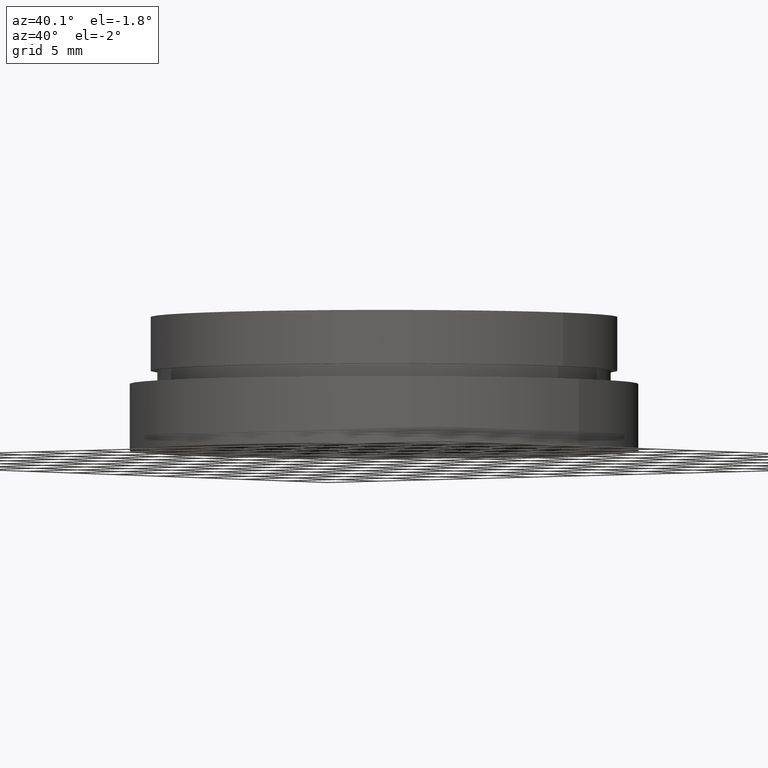
[diagram: clean part render]
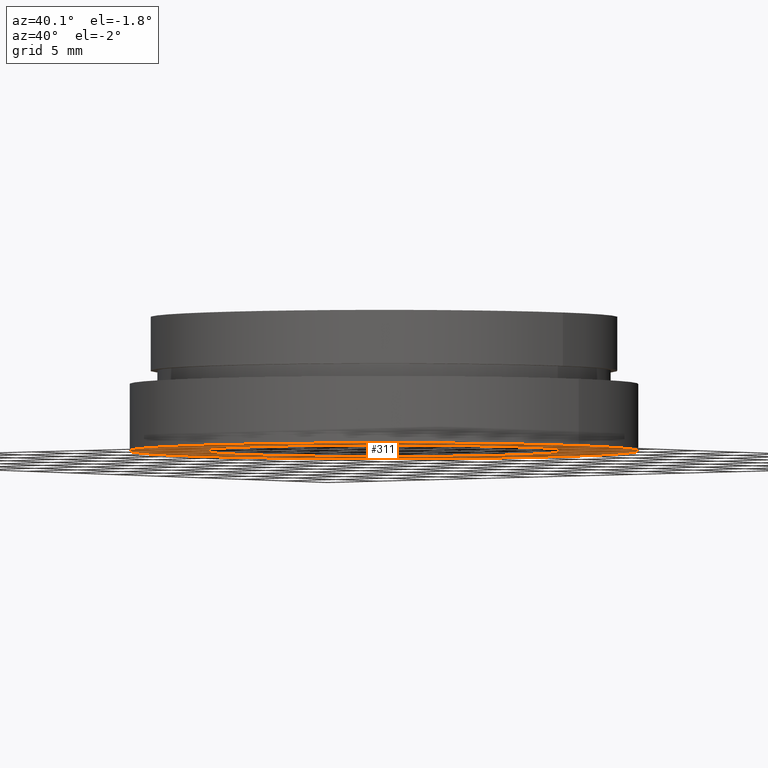
[diagram: same view with one face highlighted and labeled with its STEP entity id]
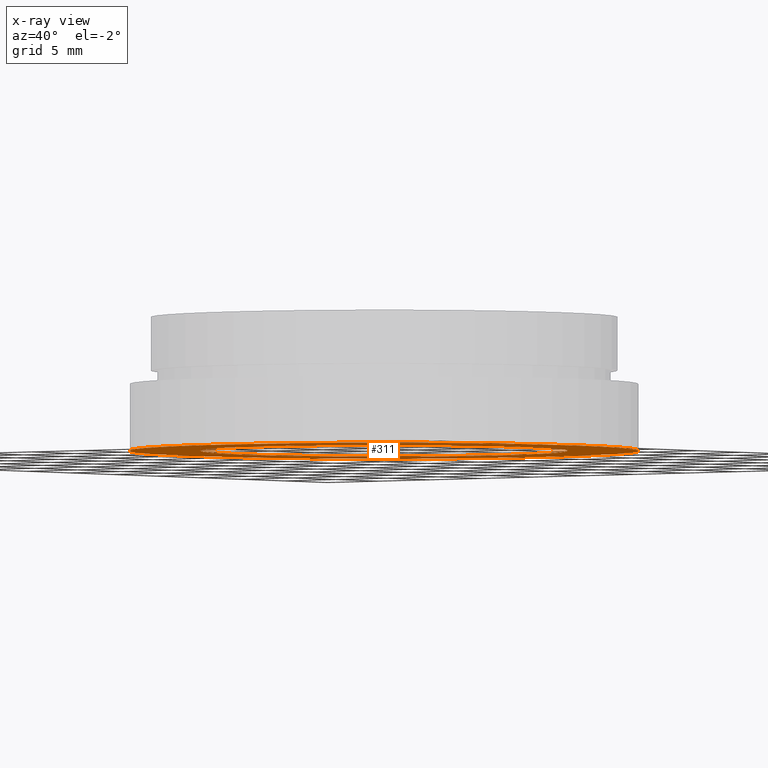
[diagram: x-ray of the same camera — body ghosted, the highlighted face saturated]
A machine part, auxiliary view. The second image highlights one B-rep face of the part: STEP entity #311.
The next image is the same camera in x-ray: the body ghosted, the highlighted face saturated — about 0% of this face is hidden behind the body in this view.
In plain terms, the highlighted planar face has unit normal (0, 0, 1).
Its self-contained STEP definition (entity closure, byte-faithful):
#2 = CARTESIAN_POINT ( 'NONE',  ( -13.75000000000000500, 0.0000000000000000000, -9.999999999999998200 ) ) ;
#34 = CIRCLE ( 'NONE', #172, 13.75000000000000500 ) ;
#45 = EDGE_LOOP ( 'NONE', ( #219, #410 ) ) ;
#59 = EDGE_CURVE ( 'NONE', #160, #398, #34, .T. ) ;
#70 = DIRECTION ( 'NONE',  ( 1.000000000000000000, 0.0000000000000000000, -0.0000000000000000000 ) ) ;
#102 = AXIS2_PLACEMENT_3D ( 'NONE', #164, #281, #297 ) ;
#105 = ORIENTED_EDGE ( 'NONE', *, *, #307, .T. ) ;
#151 = CARTESIAN_POINT ( 'NONE',  ( 0.0000000000000000000, 0.0000000000000000000, -10.00000000000000000 ) ) ;
#158 = EDGE_CURVE ( 'NONE', #398, #160, #379, .T. ) ;
#160 = VERTEX_POINT ( 'NONE', #2 ) ;
#164 = CARTESIAN_POINT ( 'NONE',  ( 0.0000000000000000000, 0.0000000000000000000, -9.999999999999998200 ) ) ;
#172 = AXIS2_PLACEMENT_3D ( 'NONE', #244, #394, #318 ) ;
#219 = ORIENTED_EDGE ( 'NONE', *, *, #59, .F. ) ;
#221 = CARTESIAN_POINT ( 'NONE',  ( 19.05000000000000400, 2.332952152375708400E-015, -10.00000000000000000 ) ) ;
#236 = CARTESIAN_POINT ( 'NONE',  ( -19.05000000000000400, 0.0000000000000000000, -10.00000000000000000 ) ) ;
#244 = CARTESIAN_POINT ( 'NONE',  ( 0.0000000000000000000, 0.0000000000000000000, -9.999999999999998200 ) ) ;
#249 = AXIS2_PLACEMENT_3D ( 'NONE', #151, #419, #421 ) ;
#259 = AXIS2_PLACEMENT_3D ( 'NONE', #356, #395, #70 ) ;
#262 = CIRCLE ( 'NONE', #348, 19.05000000000000400 ) ;
#264 = FACE_BOUND ( 'NONE', #45, .T. ) ;
#281 = DIRECTION ( 'NONE',  ( -0.0000000000000000000, -0.0000000000000000000, -1.000000000000000000 ) ) ;
#294 = EDGE_CURVE ( 'NONE', #342, #309, #300, .T. ) ;
#296 = FACE_OUTER_BOUND ( 'NONE', #317, .T. ) ;
#297 = DIRECTION ( 'NONE',  ( -1.000000000000000000, 0.0000000000000000000, 0.0000000000000000000 ) ) ;
#300 = CIRCLE ( 'NONE', #249, 19.05000000000000400 ) ;
#307 = EDGE_CURVE ( 'NONE', #309, #342, #262, .T. ) ;
#309 = VERTEX_POINT ( 'NONE', #236 ) ;
#311 = ADVANCED_FACE ( 'NONE', ( #264, #296 ), #312, .F. ) ;
#312 = PLANE ( 'NONE',  #259 ) ;
#317 = EDGE_LOOP ( 'NONE', ( #105, #415 ) ) ;
#318 = DIRECTION ( 'NONE',  ( -1.000000000000000000, 0.0000000000000000000, 0.0000000000000000000 ) ) ;
#342 = VERTEX_POINT ( 'NONE', #221 ) ;
#348 = AXIS2_PLACEMENT_3D ( 'NONE', #385, #396, #431 ) ;
#356 = CARTESIAN_POINT ( 'NONE',  ( 19.05000000000000400, 0.0000000000000000000, -9.999999999999998200 ) ) ;
#379 = CIRCLE ( 'NONE', #102, 13.75000000000000500 ) ;
#385 = CARTESIAN_POINT ( 'NONE',  ( 0.0000000000000000000, 0.0000000000000000000, -10.00000000000000000 ) ) ;
#394 = DIRECTION ( 'NONE',  ( -0.0000000000000000000, -0.0000000000000000000, -1.000000000000000000 ) ) ;
#395 = DIRECTION ( 'NONE',  ( 0.0000000000000000000, 0.0000000000000000000, 1.000000000000000000 ) ) ;
#396 = DIRECTION ( 'NONE',  ( -0.0000000000000000000, -0.0000000000000000000, -1.000000000000000000 ) ) ;
#398 = VERTEX_POINT ( 'NONE', #428 ) ;
#410 = ORIENTED_EDGE ( 'NONE', *, *, #158, .F. ) ;
#415 = ORIENTED_EDGE ( 'NONE', *, *, #294, .T. ) ;
#419 = DIRECTION ( 'NONE',  ( -0.0000000000000000000, -0.0000000000000000000, -1.000000000000000000 ) ) ;
#421 = DIRECTION ( 'NONE',  ( -1.000000000000000000, 0.0000000000000000000, 0.0000000000000000000 ) ) ;
#428 = CARTESIAN_POINT ( 'NONE',  ( 13.75000000000000500, 1.683889348827611400E-015, -9.999999999999998200 ) ) ;
#431 = DIRECTION ( 'NONE',  ( -1.000000000000000000, 0.0000000000000000000, 0.0000000000000000000 ) ) ;